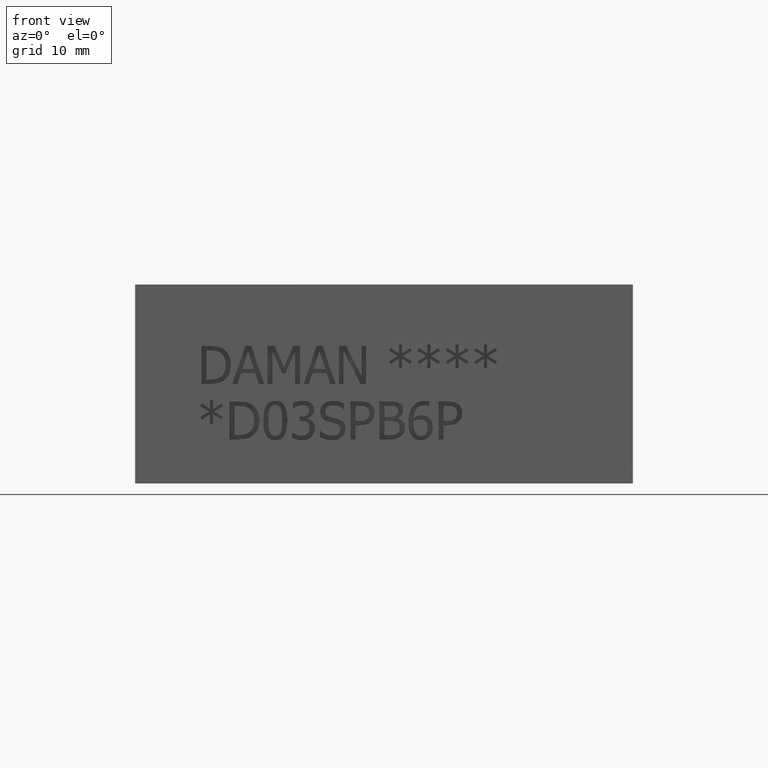
[diagram: clean part render]
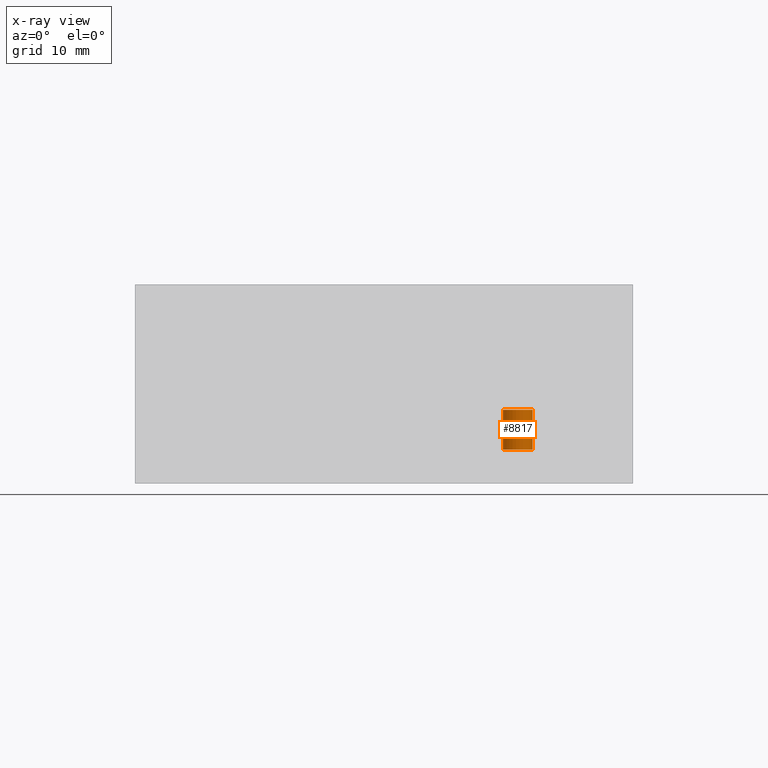
[diagram: x-ray — body ghosted, one internal face saturated and labeled with its STEP entity id]
A machine part, front view, then the same camera in x-ray: the body is ghosted and one INTERNAL B-rep face — a face not visible from any outside direction — is saturated and labeled: STEP entity #8817.
In plain terms, the highlighted cylindrical surface (bore or boss wall) has radius 1.8923 mm, axis along (0, 0, 1).
Its self-contained STEP definition (entity closure, byte-faithful):
#28=CYLINDRICAL_SURFACE('',#9202,1.8923);
#102=CIRCLE('',#9193,1.8923);
#103=CIRCLE('',#9194,1.8923);
#106=CIRCLE('',#9198,1.8923);
#902=FACE_OUTER_BOUND('',#1397,.T.);
#1397=EDGE_LOOP('',(#7746,#7747,#7748,#7749,#7750));
#2275=LINE('',#15038,#3131);
#3131=VECTOR('',#10791,1.8923);
#4199=VERTEX_POINT('',#15018);
#4200=VERTEX_POINT('',#15019);
#4204=VERTEX_POINT('',#15029);
#5396=EDGE_CURVE('',#4199,#4200,#102,.T.);
#5398=EDGE_CURVE('',#4200,#4199,#103,.T.);
#5401=EDGE_CURVE('',#4204,#4204,#106,.T.);
#5405=EDGE_CURVE('',#4204,#4200,#2275,.T.);
#7746=ORIENTED_EDGE('',*,*,#5401,.T.);
#7747=ORIENTED_EDGE('',*,*,#5405,.T.);
#7748=ORIENTED_EDGE('',*,*,#5396,.F.);
#7749=ORIENTED_EDGE('',*,*,#5398,.F.);
#7750=ORIENTED_EDGE('',*,*,#5405,.F.);
#8817=ADVANCED_FACE('',(#902),#28,.F.);
#9193=AXIS2_PLACEMENT_3D('',#15020,#10769,#10770);
#9194=AXIS2_PLACEMENT_3D('',#15023,#10772,#10773);
#9198=AXIS2_PLACEMENT_3D('',#15030,#10780,#10781);
#9202=AXIS2_PLACEMENT_3D('',#15037,#10789,#10790);
#10769=DIRECTION('center_axis',(0.,0.,1.));
#10770=DIRECTION('ref_axis',(1.,0.,0.));
#10772=DIRECTION('center_axis',(0.,0.,1.));
#10773=DIRECTION('ref_axis',(1.,0.,0.));
#10780=DIRECTION('center_axis',(0.,0.,1.));
#10781=DIRECTION('ref_axis',(1.,0.,0.));
#10789=DIRECTION('center_axis',(0.,0.,1.));
#10790=DIRECTION('ref_axis',(1.,0.,0.));
#10791=DIRECTION('',(0.,0.,-1.));
#15018=CARTESIAN_POINT('',(50.7111,11.0998,4.318));
#15019=CARTESIAN_POINT('',(46.9265,11.0998,4.318));
#15020=CARTESIAN_POINT('Origin',(48.8188,11.0998,4.318));
#15023=CARTESIAN_POINT('Origin',(48.8188,11.0998,4.318));
#15029=CARTESIAN_POINT('',(46.9265,11.0998,9.398));
#15030=CARTESIAN_POINT('Origin',(48.8188,11.0998,9.398));
#15037=CARTESIAN_POINT('Origin',(48.8188,11.0998,14.859));
#15038=CARTESIAN_POINT('',(46.9265,11.0998,14.859));